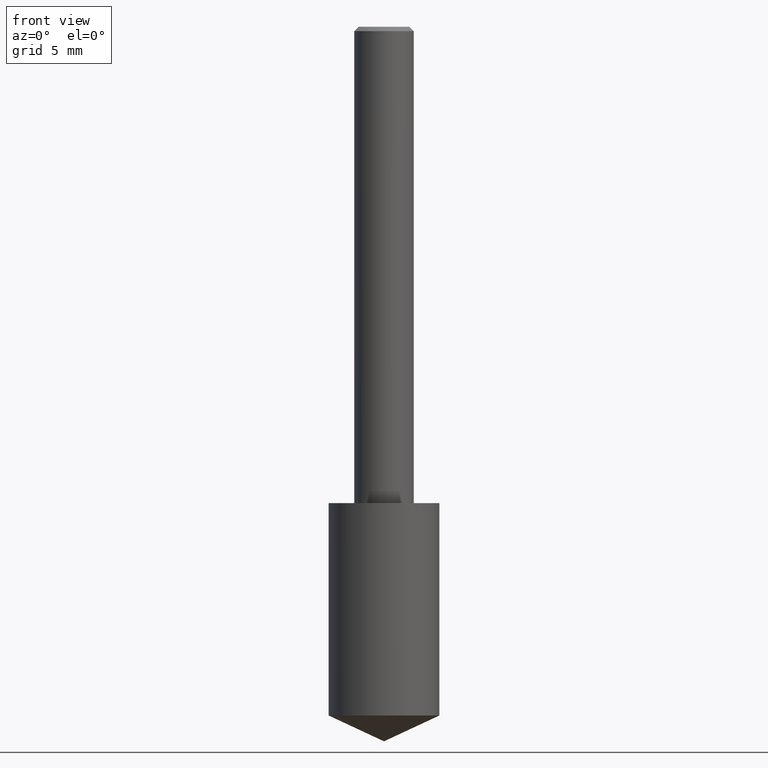
[diagram: clean part render]
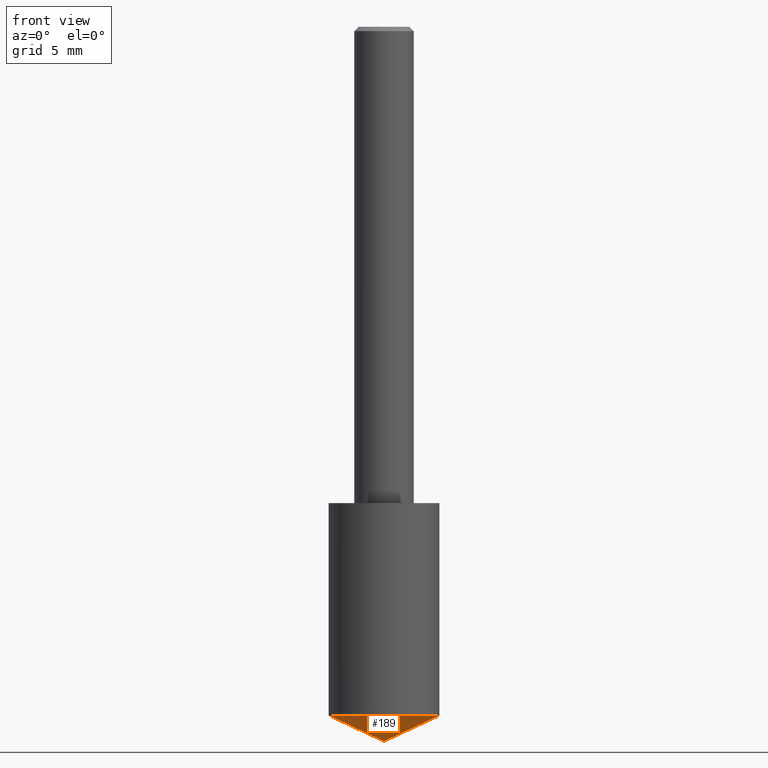
[diagram: same view with one face highlighted and labeled with its STEP entity id]
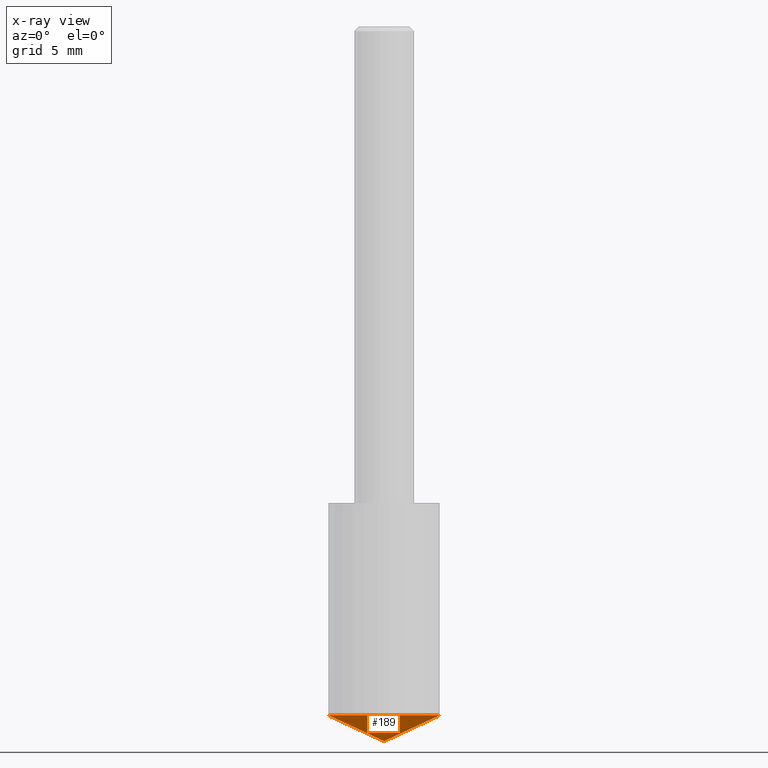
[diagram: x-ray of the same camera — body ghosted, the highlighted face saturated]
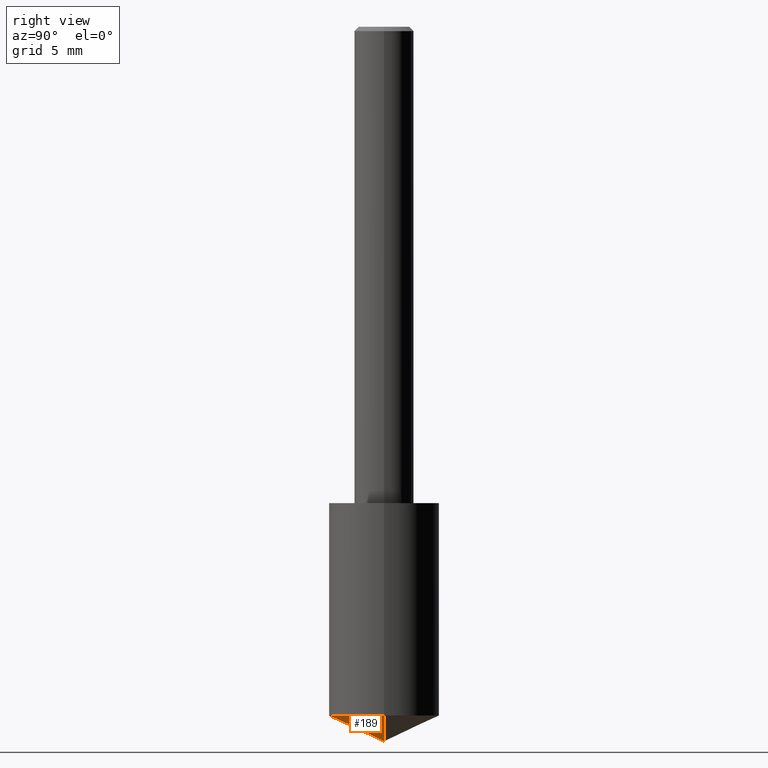
[diagram: same view with one face highlighted and labeled with its STEP entity id]
A machine part, front view. The second image highlights one B-rep face of the part: STEP entity #189.
The next image is the same camera in x-ray: the body ghosted, the highlighted face saturated — about 0% of this face is hidden behind the body in this view.
A second angle (right view) of the same face is appended — the face is thin or edge-on in the first view.
In plain terms, the highlighted conical surface has half-angle 65 deg.
Its self-contained STEP definition (entity closure, byte-faithful):
#10 = DIRECTION ( 'NONE',  ( -2.445468806185136597E-29, 3.491481338843145583E-15, 1.000000000000000000 ) ) ;
#18 = ORIENTED_EDGE ( 'NONE', *, *, #180, .F. ) ;
#29 = EDGE_CURVE ( 'NONE', #265, #314, #32, .T. ) ;
#32 = LINE ( 'NONE', #254, #299 ) ;
#40 = EDGE_LOOP ( 'NONE', ( #57, #103, #18 ) ) ;
#43 = AXIS2_PLACEMENT_3D ( 'NONE', #149, #93, #303 ) ;
#45 = CARTESIAN_POINT ( 'NONE',  ( -0.1161500000000000310, -4.222822284559862787E-15, -1.445838365505297096 ) ) ;
#57 = ORIENTED_EDGE ( 'NONE', *, *, #29, .F. ) ;
#63 = DIRECTION ( 'NONE',  ( -0.9063077870366502697, 7.915267918739016209E-15, 0.4226182617406986641 ) ) ;
#93 = DIRECTION ( 'NONE',  ( -2.445468806185136597E-29, 3.491481338843145583E-15, 1.000000000000000000 ) ) ;
#103 = ORIENTED_EDGE ( 'NONE', *, *, #137, .T. ) ;
#117 = CARTESIAN_POINT ( 'NONE',  ( 0.1161500000000000310, -5.859188787158480302E-15, -1.445838365505297096 ) ) ;
#137 = EDGE_CURVE ( 'NONE', #265, #204, #247, .T. ) ;
#149 = CARTESIAN_POINT ( 'NONE',  ( 3.535752621628908194E-29, -5.048117672145220556E-15, -1.445838365505297096 ) ) ;
#156 = CARTESIAN_POINT ( 'NONE',  ( 3.668203209277704895E-29, -5.237222008264718177E-15, -1.500000000000000222 ) ) ;
#164 = CONICAL_SURFACE ( 'NONE', #178, 84.42940631927417883, 1.134464013796315118 ) ;
#178 = AXIS2_PLACEMENT_3D ( 'NONE', #252, #10, #313 ) ;
#180 = EDGE_CURVE ( 'NONE', #314, #204, #196, .T. ) ;
#189 = ADVANCED_FACE ( 'NONE', ( #195 ), #164, .T. ) ;
#195 = FACE_OUTER_BOUND ( 'NONE', #40, .T. ) ;
#196 = CIRCLE ( 'NONE', #43, 0.1161500000000000032 ) ;
#204 = VERTEX_POINT ( 'NONE', #117 ) ;
#247 = LINE ( 'NONE', #281, #274 ) ;
#250 = DIRECTION ( 'NONE',  ( 0.9063077870366502697, -4.853149677051385890E-15, 0.4226182617406986641 ) ) ;
#252 = CARTESIAN_POINT ( 'NONE',  ( -9.261009624683002666E-28, 1.322226732217803884E-13, 37.87007874015748143 ) ) ;
#254 = CARTESIAN_POINT ( 'NONE',  ( 3.668203209277704895E-29, -5.237222008264718177E-15, -1.500000000000000222 ) ) ;
#265 = VERTEX_POINT ( 'NONE', #156 ) ;
#274 = VECTOR ( 'NONE', #250, 39.37007874015748143 ) ;
#281 = CARTESIAN_POINT ( 'NONE',  ( 3.668203209277704895E-29, -5.237222008264718177E-15, -1.500000000000000222 ) ) ;
#299 = VECTOR ( 'NONE', #63, 39.37007874015748143 ) ;
#303 = DIRECTION ( 'NONE',  ( 1.000000000000000000, -6.982962677686265922E-15, 0.000000000000000000 ) ) ;
#313 = DIRECTION ( 'NONE',  ( 1.000000000000000000, -6.982962677686266711E-15, 0.000000000000000000 ) ) ;
#314 = VERTEX_POINT ( 'NONE', #45 ) ;